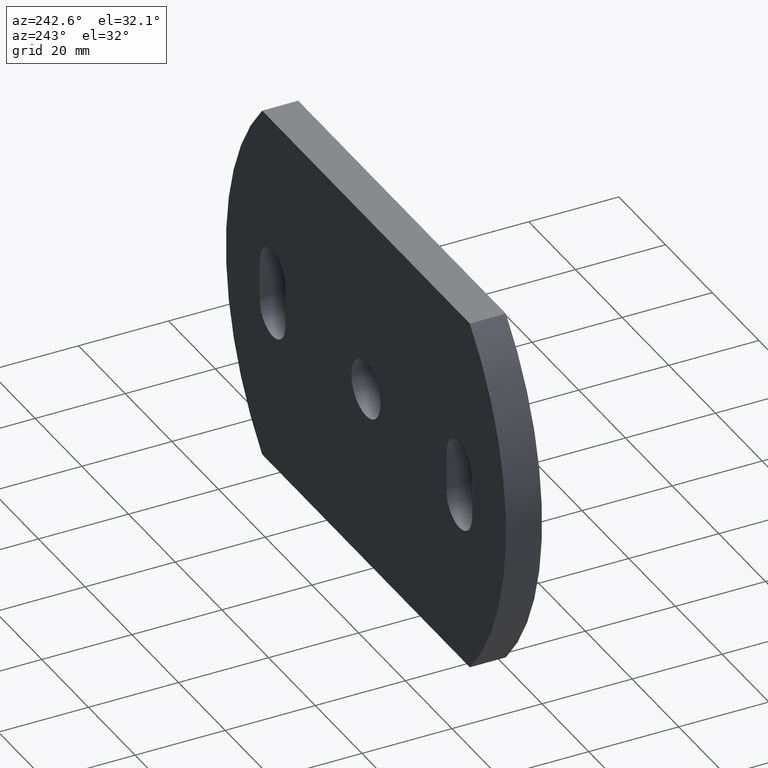
[diagram: clean part render]
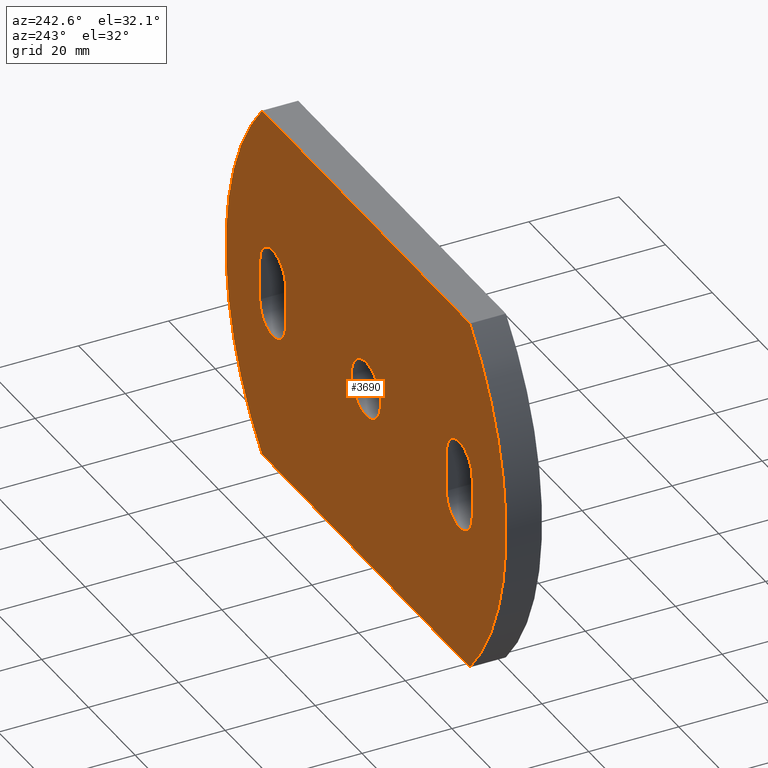
[diagram: same view with one face highlighted and labeled with its STEP entity id]
A machine part, auxiliary view. The second image highlights one B-rep face of the part: STEP entity #3690.
In plain terms, the highlighted planar face has unit normal (0, -1, 0).
Its self-contained STEP definition (entity closure, byte-faithful):
#9 = CARTESIAN_POINT ( 'NONE',  ( -0.6370967741935185100, 8.000000000000000000, 0.0000000000000000000 ) ) ;
#127 = VECTOR ( 'NONE', #5545, 1000.000000000000000 ) ;
#135 = CARTESIAN_POINT ( 'NONE',  ( -44.50000000000000000, 8.000000000000000000, -40.00000000000000700 ) ) ;
#226 = AXIS2_PLACEMENT_3D ( 'NONE', #10403, #8609, #1180 ) ;
#248 = ORIENTED_EDGE ( 'NONE', *, *, #7506, .F. ) ;
#364 = CARTESIAN_POINT ( 'NONE',  ( -45.50000000000000000, 8.000000000000000000, -4.499999999999989300 ) ) ;
#378 = EDGE_CURVE ( 'NONE', #5627, #1205, #6954, .T. ) ;
#386 = DIRECTION ( 'NONE',  ( 0.0000000000000000000, 0.0000000000000000000, 1.000000000000000000 ) ) ;
#514 = DIRECTION ( 'NONE',  ( 0.0000000000000000000, 1.000000000000000000, 0.0000000000000000000 ) ) ;
#665 = ORIENTED_EDGE ( 'NONE', *, *, #378, .T. ) ;
#764 = VERTEX_POINT ( 'NONE', #8561 ) ;
#826 = CIRCLE ( 'NONE', #3592, 5.499999999999998200 ) ;
#846 = DIRECTION ( 'NONE',  ( 0.0000000000000000000, 1.000000000000000000, 0.0000000000000000000 ) ) ;
#931 = CARTESIAN_POINT ( 'NONE',  ( 40.00000000000000000, 8.000000000000000000, 10.00000000000000500 ) ) ;
#1091 = CIRCLE ( 'NONE', #1271, 59.36290322580647700 ) ;
#1104 = DIRECTION ( 'NONE',  ( 0.0000000000000000000, 1.000000000000000000, 0.0000000000000000000 ) ) ;
#1115 = CARTESIAN_POINT ( 'NONE',  ( 40.00000000000000000, 8.000000000000000000, 4.500000000000007100 ) ) ;
#1180 = DIRECTION ( 'NONE',  ( 0.0000000000000000000, 0.0000000000000000000, 1.000000000000000000 ) ) ;
#1205 = VERTEX_POINT ( 'NONE', #10215 ) ;
#1257 = EDGE_CURVE ( 'NONE', #7514, #3764, #4391, .T. ) ;
#1271 = AXIS2_PLACEMENT_3D ( 'NONE', #9, #5862, #6709 ) ;
#1312 = DIRECTION ( 'NONE',  ( 0.0000000000000000000, 0.0000000000000000000, 1.000000000000000000 ) ) ;
#1460 = EDGE_CURVE ( 'NONE', #1205, #6479, #1091, .T. ) ;
#1584 = VERTEX_POINT ( 'NONE', #5932 ) ;
#1628 = LINE ( 'NONE', #2033, #10445 ) ;
#1704 = ORIENTED_EDGE ( 'NONE', *, *, #1460, .T. ) ;
#1717 = ORIENTED_EDGE ( 'NONE', *, *, #10708, .F. ) ;
#1757 = ORIENTED_EDGE ( 'NONE', *, *, #2384, .F. ) ;
#1779 = ORIENTED_EDGE ( 'NONE', *, *, #2342, .T. ) ;
#1864 = LINE ( 'NONE', #5945, #8694 ) ;
#1876 = VECTOR ( 'NONE', #3318, 1000.000000000000000 ) ;
#1878 = CARTESIAN_POINT ( 'NONE',  ( -40.00000000000000000, 8.000000000000000000, 4.499999999999992900 ) ) ;
#1968 = EDGE_CURVE ( 'NONE', #1584, #7723, #1864, .T. ) ;
#1971 = DIRECTION ( 'NONE',  ( 0.0000000000000000000, 0.0000000000000000000, 1.000000000000000000 ) ) ;
#2033 = CARTESIAN_POINT ( 'NONE',  ( 45.50000000000000000, 8.000000000000000000, -4.500000000000005300 ) ) ;
#2043 = CIRCLE ( 'NONE', #4022, 5.499999999999998200 ) ;
#2093 = DIRECTION ( 'NONE',  ( 0.0000000000000000000, 1.000000000000000000, 0.0000000000000000000 ) ) ;
#2111 = CIRCLE ( 'NONE', #2185, 59.36290322580642700 ) ;
#2185 = AXIS2_PLACEMENT_3D ( 'NONE', #10784, #9119, #9850 ) ;
#2342 = EDGE_CURVE ( 'NONE', #6479, #3096, #5025, .T. ) ;
#2384 = EDGE_CURVE ( 'NONE', #10247, #6958, #826, .T. ) ;
#2741 = EDGE_LOOP ( 'NONE', ( #6357, #4516 ) ) ;
#2838 = CARTESIAN_POINT ( 'NONE',  ( 45.50000000000000000, 8.000000000000000000, 4.500000000000005300 ) ) ;
#3096 = VERTEX_POINT ( 'NONE', #7006 ) ;
#3245 = EDGE_CURVE ( 'NONE', #7723, #6645, #7110, .T. ) ;
#3318 = DIRECTION ( 'NONE',  ( 1.000000000000000000, 0.0000000000000000000, 2.338953001317043400E-016 ) ) ;
#3382 = VERTEX_POINT ( 'NONE', #4119 ) ;
#3405 = VERTEX_POINT ( 'NONE', #7699 ) ;
#3464 = CARTESIAN_POINT ( 'NONE',  ( -44.50000000000002100, 8.000000000000000000, 39.99999999999999300 ) ) ;
#3568 = CARTESIAN_POINT ( 'NONE',  ( 34.50000000000000000, 8.000000000000000000, -4.500000000000003600 ) ) ;
#3585 = AXIS2_PLACEMENT_3D ( 'NONE', #3755, #1104, #1971 ) ;
#3592 = AXIS2_PLACEMENT_3D ( 'NONE', #7539, #846, #10048 ) ;
#3690 = ADVANCED_FACE ( 'NONE', ( #9485, #7364, #5026, #6184 ), #3890, .F. ) ;
#3752 = DIRECTION ( 'NONE',  ( 0.0000000000000000000, 1.000000000000000000, 0.0000000000000000000 ) ) ;
#3755 = CARTESIAN_POINT ( 'NONE',  ( -40.00000000000000000, 8.000000000000000000, 4.499999999999992900 ) ) ;
#3764 = VERTEX_POINT ( 'NONE', #9494 ) ;
#3808 = DIRECTION ( 'NONE',  ( 0.0000000000000000000, 0.0000000000000000000, 1.000000000000000000 ) ) ;
#3890 = PLANE ( 'NONE',  #9151 ) ;
#3949 = CARTESIAN_POINT ( 'NONE',  ( 44.49999999999999300, 8.000000000000000000, -39.99999999999999300 ) ) ;
#4022 = AXIS2_PLACEMENT_3D ( 'NONE', #1115, #6959, #6090 ) ;
#4067 = ORIENTED_EDGE ( 'NONE', *, *, #4106, .T. ) ;
#4106 = EDGE_CURVE ( 'NONE', #3096, #5627, #2111, .T. ) ;
#4119 = CARTESIAN_POINT ( 'NONE',  ( 45.50000000000000000, 8.000000000000000000, -4.500000000000005300 ) ) ;
#4391 = CIRCLE ( 'NONE', #226, 6.250000000000000000 ) ;
#4516 = ORIENTED_EDGE ( 'NONE', *, *, #7087, .F. ) ;
#4588 = LINE ( 'NONE', #7070, #127 ) ;
#4636 = CARTESIAN_POINT ( 'NONE',  ( 0.0000000000000000000, 8.000000000000000000, 0.0000000000000000000 ) ) ;
#4652 = CARTESIAN_POINT ( 'NONE',  ( -40.00000000000000000, 8.000000000000000000, -4.500000000000008000 ) ) ;
#5025 = LINE ( 'NONE', #7499, #1876 ) ;
#5026 = FACE_BOUND ( 'NONE', #2741, .T. ) ;
#5106 = VERTEX_POINT ( 'NONE', #2838 ) ;
#5297 = ORIENTED_EDGE ( 'NONE', *, *, #7178, .F. ) ;
#5484 = EDGE_LOOP ( 'NONE', ( #8056, #8884, #6869, #6533, #9507 ) ) ;
#5486 = VERTEX_POINT ( 'NONE', #3568 ) ;
#5545 = DIRECTION ( 'NONE',  ( 0.0000000000000000000, 0.0000000000000000000, 1.000000000000000000 ) ) ;
#5596 = DIRECTION ( 'NONE',  ( 0.0000000000000000000, -1.000000000000000000, 0.0000000000000000000 ) ) ;
#5627 = VERTEX_POINT ( 'NONE', #3949 ) ;
#5801 = AXIS2_PLACEMENT_3D ( 'NONE', #6334, #514, #1312 ) ;
#5862 = DIRECTION ( 'NONE',  ( 0.0000000000000000000, 1.000000000000000000, 0.0000000000000000000 ) ) ;
#5871 = CIRCLE ( 'NONE', #9036, 6.250000000000000000 ) ;
#5932 = CARTESIAN_POINT ( 'NONE',  ( -34.50000000000000000, 8.000000000000000000, 4.499999999999987600 ) ) ;
#5945 = CARTESIAN_POINT ( 'NONE',  ( -34.50000000000000000, 8.000000000000000000, -4.499999999999987600 ) ) ;
#5983 = DIRECTION ( 'NONE',  ( -1.000000000000000000, -0.0000000000000000000, -1.559302000878029000E-016 ) ) ;
#6090 = DIRECTION ( 'NONE',  ( 0.0000000000000000000, 0.0000000000000000000, 1.000000000000000000 ) ) ;
#6112 = AXIS2_PLACEMENT_3D ( 'NONE', #4652, #2093, #3808 ) ;
#6184 = FACE_OUTER_BOUND ( 'NONE', #9536, .T. ) ;
#6334 = CARTESIAN_POINT ( 'NONE',  ( 40.00000000000000000, 8.000000000000000000, -4.499999999999992900 ) ) ;
#6357 = ORIENTED_EDGE ( 'NONE', *, *, #1257, .F. ) ;
#6393 = CARTESIAN_POINT ( 'NONE',  ( 0.6370967741935809100, 8.000000000000000000, 0.0000000000000000000 ) ) ;
#6479 = VERTEX_POINT ( 'NONE', #3464 ) ;
#6533 = ORIENTED_EDGE ( 'NONE', *, *, #7998, .F. ) ;
#6645 = VERTEX_POINT ( 'NONE', #8583 ) ;
#6709 = DIRECTION ( 'NONE',  ( 0.0000000000000000000, 0.0000000000000000000, 1.000000000000000000 ) ) ;
#6869 = ORIENTED_EDGE ( 'NONE', *, *, #1968, .F. ) ;
#6954 = LINE ( 'NONE', #135, #7097 ) ;
#6958 = VERTEX_POINT ( 'NONE', #931 ) ;
#6959 = DIRECTION ( 'NONE',  ( 0.0000000000000000000, 1.000000000000000000, 0.0000000000000000000 ) ) ;
#7006 = CARTESIAN_POINT ( 'NONE',  ( 44.49999999999997900, 8.000000000000000000, 40.00000000000001400 ) ) ;
#7070 = CARTESIAN_POINT ( 'NONE',  ( 34.50000000000000000, 8.000000000000000000, -4.500000000000003600 ) ) ;
#7072 = DIRECTION ( 'NONE',  ( 0.0000000000000000000, 1.000000000000000000, 0.0000000000000000000 ) ) ;
#7087 = EDGE_CURVE ( 'NONE', #3764, #7514, #5871, .T. ) ;
#7097 = VECTOR ( 'NONE', #5983, 1000.000000000000000 ) ;
#7110 = CIRCLE ( 'NONE', #6112, 5.499999999999998200 ) ;
#7120 = AXIS2_PLACEMENT_3D ( 'NONE', #1878, #7072, #386 ) ;
#7178 = EDGE_CURVE ( 'NONE', #3382, #5486, #9689, .T. ) ;
#7364 = FACE_BOUND ( 'NONE', #5484, .T. ) ;
#7499 = CARTESIAN_POINT ( 'NONE',  ( -44.50000000000002100, 8.000000000000000000, 39.99999999999999300 ) ) ;
#7506 = EDGE_CURVE ( 'NONE', #5486, #10247, #4588, .T. ) ;
#7514 = VERTEX_POINT ( 'NONE', #10589 ) ;
#7539 = CARTESIAN_POINT ( 'NONE',  ( 40.00000000000000000, 8.000000000000000000, 4.500000000000007100 ) ) ;
#7699 = CARTESIAN_POINT ( 'NONE',  ( -40.00000000000000000, 8.000000000000000000, 9.999999999999991100 ) ) ;
#7723 = VERTEX_POINT ( 'NONE', #10015 ) ;
#7897 = DIRECTION ( 'NONE',  ( -0.0000000000000000000, -0.0000000000000000000, -1.000000000000000000 ) ) ;
#7998 = EDGE_CURVE ( 'NONE', #3405, #1584, #9030, .T. ) ;
#8056 = ORIENTED_EDGE ( 'NONE', *, *, #10693, .F. ) ;
#8120 = EDGE_LOOP ( 'NONE', ( #248, #5297, #1717, #9705, #1757 ) ) ;
#8561 = CARTESIAN_POINT ( 'NONE',  ( -45.50000000000000000, 8.000000000000000000, 4.499999999999986700 ) ) ;
#8583 = CARTESIAN_POINT ( 'NONE',  ( -45.50000000000000000, 8.000000000000000000, -4.499999999999989300 ) ) ;
#8609 = DIRECTION ( 'NONE',  ( 0.0000000000000000000, 1.000000000000000000, 0.0000000000000000000 ) ) ;
#8694 = VECTOR ( 'NONE', #10295, 1000.000000000000000 ) ;
#8792 = DIRECTION ( 'NONE',  ( 0.0000000000000000000, 0.0000000000000000000, 1.000000000000000000 ) ) ;
#8884 = ORIENTED_EDGE ( 'NONE', *, *, #3245, .F. ) ;
#9030 = CIRCLE ( 'NONE', #7120, 5.499999999999999100 ) ;
#9036 = AXIS2_PLACEMENT_3D ( 'NONE', #4636, #3752, #8792 ) ;
#9119 = DIRECTION ( 'NONE',  ( 0.0000000000000000000, 1.000000000000000000, -0.0000000000000000000 ) ) ;
#9151 = AXIS2_PLACEMENT_3D ( 'NONE', #6393, #5596, #10599 ) ;
#9485 = FACE_BOUND ( 'NONE', #8120, .T. ) ;
#9494 = CARTESIAN_POINT ( 'NONE',  ( 7.654042494670957600E-016, 8.000000000000000000, -6.250000000000000000 ) ) ;
#9507 = ORIENTED_EDGE ( 'NONE', *, *, #10065, .F. ) ;
#9536 = EDGE_LOOP ( 'NONE', ( #4067, #665, #1704, #1779 ) ) ;
#9671 = DIRECTION ( 'NONE',  ( 0.0000000000000000000, 0.0000000000000000000, 1.000000000000000000 ) ) ;
#9689 = CIRCLE ( 'NONE', #5801, 5.499999999999998200 ) ;
#9705 = ORIENTED_EDGE ( 'NONE', *, *, #9806, .F. ) ;
#9806 = EDGE_CURVE ( 'NONE', #6958, #5106, #2043, .T. ) ;
#9850 = DIRECTION ( 'NONE',  ( 0.0000000000000000000, 0.0000000000000000000, -1.000000000000000000 ) ) ;
#9965 = CARTESIAN_POINT ( 'NONE',  ( 34.50000000000000000, 8.000000000000000000, 4.500000000000001800 ) ) ;
#10015 = CARTESIAN_POINT ( 'NONE',  ( -34.50000000000000000, 8.000000000000000000, -4.499999999999987600 ) ) ;
#10038 = LINE ( 'NONE', #364, #10172 ) ;
#10048 = DIRECTION ( 'NONE',  ( 0.0000000000000000000, 0.0000000000000000000, 1.000000000000000000 ) ) ;
#10065 = EDGE_CURVE ( 'NONE', #764, #3405, #10468, .T. ) ;
#10172 = VECTOR ( 'NONE', #9671, 1000.000000000000000 ) ;
#10215 = CARTESIAN_POINT ( 'NONE',  ( -44.49999999999998600, 8.000000000000000000, -40.00000000000002800 ) ) ;
#10247 = VERTEX_POINT ( 'NONE', #9965 ) ;
#10295 = DIRECTION ( 'NONE',  ( -0.0000000000000000000, -0.0000000000000000000, -1.000000000000000000 ) ) ;
#10403 = CARTESIAN_POINT ( 'NONE',  ( 0.0000000000000000000, 8.000000000000000000, 0.0000000000000000000 ) ) ;
#10445 = VECTOR ( 'NONE', #7897, 1000.000000000000000 ) ;
#10468 = CIRCLE ( 'NONE', #3585, 5.499999999999999100 ) ;
#10589 = CARTESIAN_POINT ( 'NONE',  ( 0.0000000000000000000, 8.000000000000000000, 6.250000000000000000 ) ) ;
#10599 = DIRECTION ( 'NONE',  ( 0.0000000000000000000, -0.0000000000000000000, -1.000000000000000000 ) ) ;
#10693 = EDGE_CURVE ( 'NONE', #6645, #764, #10038, .T. ) ;
#10708 = EDGE_CURVE ( 'NONE', #5106, #3382, #1628, .T. ) ;
#10784 = CARTESIAN_POINT ( 'NONE',  ( 0.6370967741935809100, 8.000000000000000000, 0.0000000000000000000 ) ) ;